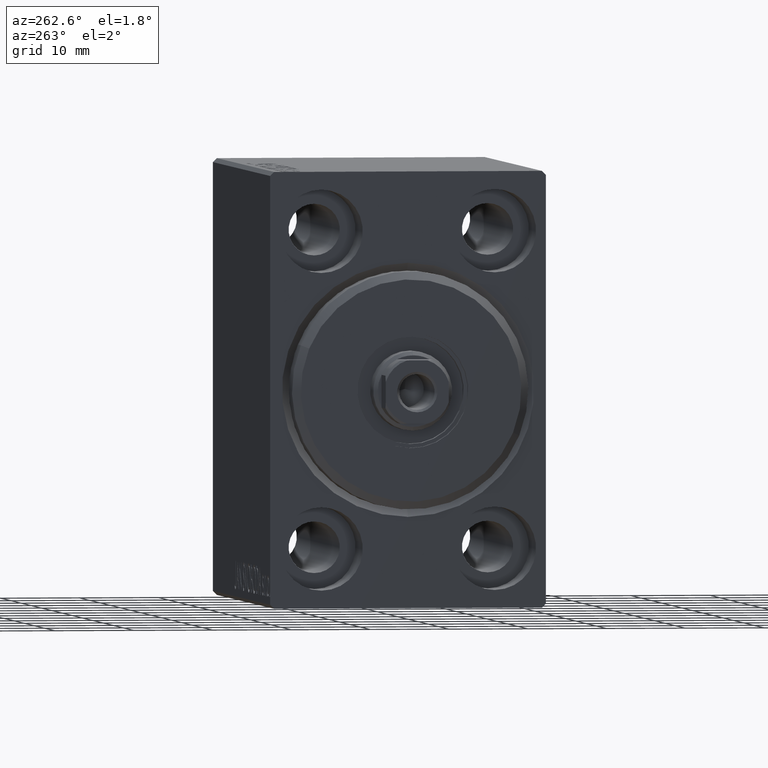
[diagram: clean part render]
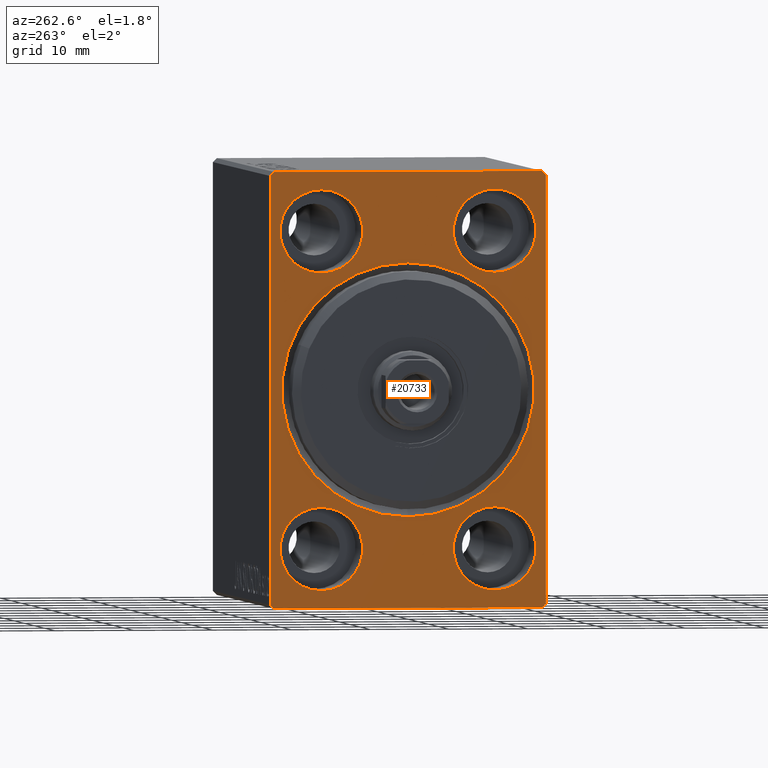
[diagram: same view with one face highlighted and labeled with its STEP entity id]
A machine part, auxiliary view. The second image highlights one B-rep face of the part: STEP entity #20733.
In plain terms, the highlighted planar face has unit normal (1, 0, 0).
Its self-contained STEP definition (entity closure, byte-faithful):
#351 = AXIS2_PLACEMENT_3D ( 'NONE', #27696, #34796, #13923 ) ;
#429 = DIRECTION ( 'NONE',  ( -1.000000000000000000, 0.000000000000000000, 0.000000000000000000 ) ) ;
#446 = VECTOR ( 'NONE', #39690, 1000.000000000000000 ) ;
#556 = EDGE_CURVE ( 'NONE', #43879, #16144, #5951, .T. ) ;
#1422 = VERTEX_POINT ( 'NONE', #22173 ) ;
#1782 = AXIS2_PLACEMENT_3D ( 'NONE', #41715, #41934, #42373 ) ;
#2021 = FACE_BOUND ( 'NONE', #2237, .T. ) ;
#2198 = CARTESIAN_POINT ( 'NONE',  ( 0.000000000000000000, 17.50000000000000000, 27.50000000000000355 ) ) ;
#2236 = FACE_BOUND ( 'NONE', #28103, .T. ) ;
#2237 = EDGE_LOOP ( 'NONE', ( #36779, #2606 ) ) ;
#2606 = ORIENTED_EDGE ( 'NONE', *, *, #12102, .F. ) ;
#3157 = ORIENTED_EDGE ( 'NONE', *, *, #14817, .F. ) ;
#4108 = EDGE_CURVE ( 'NONE', #16669, #19854, #10439, .T. ) ;
#4528 = DIRECTION ( 'NONE',  ( -1.000000000000000000, 0.000000000000000000, 0.000000000000000000 ) ) ;
#4593 = AXIS2_PLACEMENT_3D ( 'NONE', #28446, #15121, #25344 ) ;
#4822 = LINE ( 'NONE', #18565, #15954 ) ;
#5578 = DIRECTION ( 'NONE',  ( 0.000000000000000000, 0.000000000000000000, -1.000000000000000000 ) ) ;
#5797 = CARTESIAN_POINT ( 'NONE',  ( 0.000000000000000000, 17.00000000000000711, -27.50000000000000355 ) ) ;
#5951 = LINE ( 'NONE', #2198, #446 ) ;
#6159 = ORIENTED_EDGE ( 'NONE', *, *, #34092, .T. ) ;
#6331 = LINE ( 'NONE', #30301, #25855 ) ;
#7197 = CARTESIAN_POINT ( 'NONE',  ( 0.000000000000000000, 11.00000000000000355, 20.00000000000000000 ) ) ;
#8208 = CARTESIAN_POINT ( 'NONE',  ( 0.000000000000000000, -16.99999999999999289, -27.50000000000000355 ) ) ;
#9043 = ORIENTED_EDGE ( 'NONE', *, *, #14759, .T. ) ;
#9595 = ORIENTED_EDGE ( 'NONE', *, *, #35657, .T. ) ;
#9610 = DIRECTION ( 'NONE',  ( -0.000000000000000000, 0.7071067811865474617, -0.7071067811865474617 ) ) ;
#9894 = DIRECTION ( 'NONE',  ( -1.000000000000000000, 0.000000000000000000, 0.000000000000000000 ) ) ;
#9994 = VECTOR ( 'NONE', #10501, 1000.000000000000000 ) ;
#10439 = CIRCLE ( 'NONE', #37371, 5.250000000000000888 ) ;
#10475 = CIRCLE ( 'NONE', #34570, 5.250000000000000888 ) ;
#10501 = DIRECTION ( 'NONE',  ( 0.000000000000000000, 1.000000000000000000, 0.000000000000000000 ) ) ;
#10700 = VECTOR ( 'NONE', #9610, 1000.000000000000114 ) ;
#10899 = VERTEX_POINT ( 'NONE', #18418 ) ;
#11199 = CARTESIAN_POINT ( 'NONE',  ( 0.000000000000000000, 11.00000000000000355, -14.75000000000000000 ) ) ;
#11641 = CIRCLE ( 'NONE', #22295, 16.00000000000001421 ) ;
#11680 = DIRECTION ( 'NONE',  ( -0.000000000000000000, -0.7071067811865474617, 0.7071067811865474617 ) ) ;
#11741 = CARTESIAN_POINT ( 'NONE',  ( 0.000000000000000000, 17.50000000000000000, 26.99999999999999645 ) ) ;
#12102 = EDGE_CURVE ( 'NONE', #14726, #39860, #22602, .T. ) ;
#12400 = CARTESIAN_POINT ( 'NONE',  ( 0.000000000000000000, -17.50000000000000000, 26.99999999999998934 ) ) ;
#12411 = FACE_BOUND ( 'NONE', #42819, .T. ) ;
#12606 = CARTESIAN_POINT ( 'NONE',  ( 0.000000000000000000, -11.00000000000000355, -25.25000000000000000 ) ) ;
#12940 = LINE ( 'NONE', #40029, #10700 ) ;
#12962 = CARTESIAN_POINT ( 'NONE',  ( 0.000000000000000000, -17.50000000000000000, 26.99999999999998934 ) ) ;
#13000 = DIRECTION ( 'NONE',  ( 0.000000000000000000, 0.000000000000000000, 1.000000000000000000 ) ) ;
#13378 = CARTESIAN_POINT ( 'NONE',  ( 0.000000000000000000, 17.50000000000000711, -27.00000000000000355 ) ) ;
#13508 = ORIENTED_EDGE ( 'NONE', *, *, #32566, .T. ) ;
#13572 = AXIS2_PLACEMENT_3D ( 'NONE', #25970, #29298, #39513 ) ;
#13923 = DIRECTION ( 'NONE',  ( 0.000000000000000000, 0.000000000000000000, 1.000000000000000000 ) ) ;
#13964 = VERTEX_POINT ( 'NONE', #11199 ) ;
#14265 = CARTESIAN_POINT ( 'NONE',  ( 0.000000000000000000, -17.50000000000000000, -27.50000000000000355 ) ) ;
#14716 = CARTESIAN_POINT ( 'NONE',  ( 0.000000000000000000, 17.50000000000000711, -27.00000000000000355 ) ) ;
#14726 = VERTEX_POINT ( 'NONE', #16290 ) ;
#14759 = EDGE_CURVE ( 'NONE', #43879, #33841, #12940, .T. ) ;
#14817 = EDGE_CURVE ( 'NONE', #18644, #29325, #30483, .T. ) ;
#14916 = DIRECTION ( 'NONE',  ( -1.000000000000000000, 0.000000000000000000, 0.000000000000000000 ) ) ;
#15121 = DIRECTION ( 'NONE',  ( -1.000000000000000000, 0.000000000000000000, 0.000000000000000000 ) ) ;
#15757 = PLANE ( 'NONE',  #13572 ) ;
#15954 = VECTOR ( 'NONE', #11680, 1000.000000000000114 ) ;
#15956 = AXIS2_PLACEMENT_3D ( 'NONE', #31773, #39091, #5578 ) ;
#16144 = VERTEX_POINT ( 'NONE', #41097 ) ;
#16290 = CARTESIAN_POINT ( 'NONE',  ( 0.000000000000000000, -11.00000000000000355, 14.75000000000000000 ) ) ;
#16669 = VERTEX_POINT ( 'NONE', #12606 ) ;
#16711 = LINE ( 'NONE', #13378, #28158 ) ;
#18054 = CIRCLE ( 'NONE', #4593, 5.250000000000000888 ) ;
#18418 = CARTESIAN_POINT ( 'NONE',  ( 0.000000000000000000, -17.50000000000000000, -26.99999999999999645 ) ) ;
#18565 = CARTESIAN_POINT ( 'NONE',  ( 0.000000000000000000, -16.99999999999999289, -27.50000000000000355 ) ) ;
#18644 = VERTEX_POINT ( 'NONE', #8208 ) ;
#19208 = DIRECTION ( 'NONE',  ( 1.000000000000000000, 0.000000000000000000, 0.000000000000000000 ) ) ;
#19468 = CIRCLE ( 'NONE', #351, 5.250000000000000888 ) ;
#19697 = VERTEX_POINT ( 'NONE', #26899 ) ;
#19854 = VERTEX_POINT ( 'NONE', #39072 ) ;
#20710 = DIRECTION ( 'NONE',  ( 0.000000000000000000, -0.7071067811865474617, -0.7071067811865474617 ) ) ;
#20733 = ADVANCED_FACE ( 'NONE', ( #2236, #22858, #2021, #21986, #12411, #35530 ), #15757, .F. ) ;
#20971 = CARTESIAN_POINT ( 'NONE',  ( 0.000000000000000000, -11.00000000000000355, 25.25000000000000000 ) ) ;
#21986 = FACE_BOUND ( 'NONE', #37327, .T. ) ;
#22053 = VERTEX_POINT ( 'NONE', #12400 ) ;
#22173 = CARTESIAN_POINT ( 'NONE',  ( 0.000000000000000000, 11.00000000000000355, 14.75000000000000000 ) ) ;
#22264 = CARTESIAN_POINT ( 'NONE',  ( 0.000000000000000000, 1.959434878635766709E-15, -16.00000000000001421 ) ) ;
#22295 = AXIS2_PLACEMENT_3D ( 'NONE', #43397, #19208, #32746 ) ;
#22602 = CIRCLE ( 'NONE', #23300, 5.250000000000000888 ) ;
#22858 = FACE_BOUND ( 'NONE', #25382, .T. ) ;
#23019 = VERTEX_POINT ( 'NONE', #14716 ) ;
#23227 = CARTESIAN_POINT ( 'NONE',  ( 0.000000000000000000, 11.00000000000000355, -20.00000000000000000 ) ) ;
#23300 = AXIS2_PLACEMENT_3D ( 'NONE', #25418, #31857, #42066 ) ;
#23934 = ORIENTED_EDGE ( 'NONE', *, *, #34018, .F. ) ;
#24256 = ORIENTED_EDGE ( 'NONE', *, *, #33879, .F. ) ;
#24646 = AXIS2_PLACEMENT_3D ( 'NONE', #31687, #429, #27713 ) ;
#24726 = DIRECTION ( 'NONE',  ( 0.000000000000000000, 0.000000000000000000, 1.000000000000000000 ) ) ;
#25344 = DIRECTION ( 'NONE',  ( 0.000000000000000000, 0.000000000000000000, 1.000000000000000000 ) ) ;
#25382 = EDGE_LOOP ( 'NONE', ( #36736, #27348 ) ) ;
#25418 = CARTESIAN_POINT ( 'NONE',  ( 0.000000000000000000, -11.00000000000000355, 20.00000000000000000 ) ) ;
#25510 = DIRECTION ( 'NONE',  ( 0.000000000000000000, -1.261617073437677752E-16, 1.000000000000000000 ) ) ;
#25855 = VECTOR ( 'NONE', #33416, 1000.000000000000000 ) ;
#25970 = CARTESIAN_POINT ( 'NONE',  ( 0.000000000000000000, 0.000000000000000000, 0.000000000000000000 ) ) ;
#26675 = ORIENTED_EDGE ( 'NONE', *, *, #4108, .F. ) ;
#26899 = CARTESIAN_POINT ( 'NONE',  ( 0.000000000000000000, 11.00000000000000355, -25.25000000000000000 ) ) ;
#27348 = ORIENTED_EDGE ( 'NONE', *, *, #41791, .F. ) ;
#27409 = CARTESIAN_POINT ( 'NONE',  ( 0.000000000000000000, 11.00000000000000355, 25.25000000000000000 ) ) ;
#27696 = CARTESIAN_POINT ( 'NONE',  ( 0.000000000000000000, -11.00000000000000355, -20.00000000000000000 ) ) ;
#27713 = DIRECTION ( 'NONE',  ( 0.000000000000000000, 0.000000000000000000, 1.000000000000000000 ) ) ;
#27984 = VERTEX_POINT ( 'NONE', #27409 ) ;
#28103 = EDGE_LOOP ( 'NONE', ( #28682, #13508 ) ) ;
#28158 = VECTOR ( 'NONE', #20710, 1000.000000000000114 ) ;
#28280 = ORIENTED_EDGE ( 'NONE', *, *, #40675, .T. ) ;
#28446 = CARTESIAN_POINT ( 'NONE',  ( 0.000000000000000000, -11.00000000000000355, 20.00000000000000000 ) ) ;
#28682 = ORIENTED_EDGE ( 'NONE', *, *, #30204, .T. ) ;
#28716 = EDGE_CURVE ( 'NONE', #22053, #10899, #6331, .T. ) ;
#29279 = EDGE_CURVE ( 'NONE', #39860, #14726, #18054, .T. ) ;
#29298 = DIRECTION ( 'NONE',  ( 1.000000000000000000, 0.000000000000000000, 0.000000000000000000 ) ) ;
#29325 = VERTEX_POINT ( 'NONE', #5797 ) ;
#29900 = VERTEX_POINT ( 'NONE', #22264 ) ;
#30113 = EDGE_LOOP ( 'NONE', ( #37100, #6159, #42566, #9043, #24256, #28280, #3157, #9595 ) ) ;
#30204 = EDGE_CURVE ( 'NONE', #42085, #29900, #35796, .T. ) ;
#30301 = CARTESIAN_POINT ( 'NONE',  ( 0.000000000000000000, -17.50000000000000000, 27.49999999999999645 ) ) ;
#30483 = LINE ( 'NONE', #14265, #9994 ) ;
#30555 = EDGE_CURVE ( 'NONE', #27984, #1422, #33680, .T. ) ;
#30821 = VECTOR ( 'NONE', #37159, 1000.000000000000114 ) ;
#31687 = CARTESIAN_POINT ( 'NONE',  ( 0.000000000000000000, 11.00000000000000355, -20.00000000000000000 ) ) ;
#31773 = CARTESIAN_POINT ( 'NONE',  ( 0.000000000000000000, 0.000000000000000000, 0.000000000000000000 ) ) ;
#31857 = DIRECTION ( 'NONE',  ( -1.000000000000000000, 0.000000000000000000, 0.000000000000000000 ) ) ;
#32386 = CARTESIAN_POINT ( 'NONE',  ( 0.000000000000000000, 17.50000000000000711, -27.50000000000000355 ) ) ;
#32566 = EDGE_CURVE ( 'NONE', #29900, #42085, #11641, .T. ) ;
#32746 = DIRECTION ( 'NONE',  ( 0.000000000000000000, 0.000000000000000000, -1.000000000000000000 ) ) ;
#33233 = AXIS2_PLACEMENT_3D ( 'NONE', #7197, #4528, #24726 ) ;
#33416 = DIRECTION ( 'NONE',  ( 0.000000000000000000, 0.000000000000000000, -1.000000000000000000 ) ) ;
#33680 = CIRCLE ( 'NONE', #1782, 5.250000000000000888 ) ;
#33841 = VERTEX_POINT ( 'NONE', #11741 ) ;
#33879 = EDGE_CURVE ( 'NONE', #23019, #33841, #39699, .T. ) ;
#34018 = EDGE_CURVE ( 'NONE', #19854, #16669, #19468, .T. ) ;
#34062 = LINE ( 'NONE', #12962, #30821 ) ;
#34092 = EDGE_CURVE ( 'NONE', #22053, #16144, #34062, .T. ) ;
#34570 = AXIS2_PLACEMENT_3D ( 'NONE', #23227, #9894, #13000 ) ;
#34796 = DIRECTION ( 'NONE',  ( -1.000000000000000000, 0.000000000000000000, 0.000000000000000000 ) ) ;
#35530 = FACE_OUTER_BOUND ( 'NONE', #30113, .T. ) ;
#35657 = EDGE_CURVE ( 'NONE', #18644, #10899, #4822, .T. ) ;
#35796 = CIRCLE ( 'NONE', #15956, 16.00000000000001421 ) ;
#35997 = DIRECTION ( 'NONE',  ( 0.000000000000000000, 0.000000000000000000, 1.000000000000000000 ) ) ;
#36736 = ORIENTED_EDGE ( 'NONE', *, *, #41568, .F. ) ;
#36779 = ORIENTED_EDGE ( 'NONE', *, *, #29279, .F. ) ;
#37100 = ORIENTED_EDGE ( 'NONE', *, *, #28716, .F. ) ;
#37159 = DIRECTION ( 'NONE',  ( -0.000000000000000000, 0.7071067811865474617, 0.7071067811865474617 ) ) ;
#37216 = VECTOR ( 'NONE', #25510, 1000.000000000000000 ) ;
#37327 = EDGE_LOOP ( 'NONE', ( #41247, #37929 ) ) ;
#37371 = AXIS2_PLACEMENT_3D ( 'NONE', #42003, #14916, #35997 ) ;
#37407 = CIRCLE ( 'NONE', #24646, 5.250000000000000888 ) ;
#37929 = ORIENTED_EDGE ( 'NONE', *, *, #43751, .F. ) ;
#39072 = CARTESIAN_POINT ( 'NONE',  ( 0.000000000000000000, -11.00000000000000355, -14.75000000000000000 ) ) ;
#39091 = DIRECTION ( 'NONE',  ( 1.000000000000000000, 0.000000000000000000, 0.000000000000000000 ) ) ;
#39513 = DIRECTION ( 'NONE',  ( 0.000000000000000000, 0.000000000000000000, -1.000000000000000000 ) ) ;
#39690 = DIRECTION ( 'NONE',  ( 0.000000000000000000, -1.000000000000000000, -1.982541115402065110E-16 ) ) ;
#39699 = LINE ( 'NONE', #32386, #37216 ) ;
#39819 = CARTESIAN_POINT ( 'NONE',  ( 0.000000000000000000, 0.000000000000000000, 16.00000000000001421 ) ) ;
#39860 = VERTEX_POINT ( 'NONE', #20971 ) ;
#40029 = CARTESIAN_POINT ( 'NONE',  ( 0.000000000000000000, 16.99999999999999289, 27.50000000000000355 ) ) ;
#40288 = CIRCLE ( 'NONE', #33233, 5.250000000000000888 ) ;
#40675 = EDGE_CURVE ( 'NONE', #23019, #29325, #16711, .T. ) ;
#41097 = CARTESIAN_POINT ( 'NONE',  ( 0.000000000000000000, -16.99999999999999289, 27.49999999999999645 ) ) ;
#41247 = ORIENTED_EDGE ( 'NONE', *, *, #30555, .F. ) ;
#41568 = EDGE_CURVE ( 'NONE', #13964, #19697, #37407, .T. ) ;
#41715 = CARTESIAN_POINT ( 'NONE',  ( 0.000000000000000000, 11.00000000000000355, 20.00000000000000000 ) ) ;
#41791 = EDGE_CURVE ( 'NONE', #19697, #13964, #10475, .T. ) ;
#41934 = DIRECTION ( 'NONE',  ( -1.000000000000000000, 0.000000000000000000, 0.000000000000000000 ) ) ;
#42003 = CARTESIAN_POINT ( 'NONE',  ( 0.000000000000000000, -11.00000000000000355, -20.00000000000000000 ) ) ;
#42034 = CARTESIAN_POINT ( 'NONE',  ( 0.000000000000000000, 16.99999999999999289, 27.50000000000000355 ) ) ;
#42066 = DIRECTION ( 'NONE',  ( 0.000000000000000000, 0.000000000000000000, 1.000000000000000000 ) ) ;
#42085 = VERTEX_POINT ( 'NONE', #39819 ) ;
#42373 = DIRECTION ( 'NONE',  ( 0.000000000000000000, 0.000000000000000000, 1.000000000000000000 ) ) ;
#42566 = ORIENTED_EDGE ( 'NONE', *, *, #556, .F. ) ;
#42819 = EDGE_LOOP ( 'NONE', ( #23934, #26675 ) ) ;
#43397 = CARTESIAN_POINT ( 'NONE',  ( 0.000000000000000000, 0.000000000000000000, 0.000000000000000000 ) ) ;
#43751 = EDGE_CURVE ( 'NONE', #1422, #27984, #40288, .T. ) ;
#43879 = VERTEX_POINT ( 'NONE', #42034 ) ;